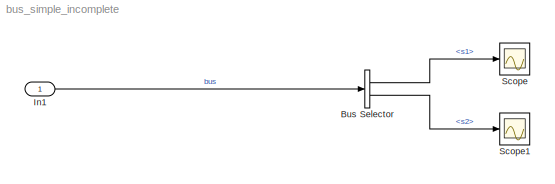
MODEL bus_simple_incomplete
KIND model
BLOCK [BusSelector] Bus Selector
  OutputSignals = s1,s2
  Ports = [1, 2]
  SID = 5
BLOCK [Inport] In1
  IconDisplay = Port number
  SID = 8
BLOCK [Scope] Scope
  DataFormat = StructureWithTime
  Floating = off
  NumInputPorts = 1
  Ports = [1]
  SID = 3
  SampleTime = 0
  ShowLegends = off
BLOCK [Scope] Scope1
  DataFormat = StructureWithTime
  Floating = off
  NumInputPorts = 1
  Ports = [1]
  SID = 6
  SampleTime = 0
  SaveName = ScopeData1
  ShowLegends = off
LINE Bus Selector:1 -> Scope:1
LINE Bus Selector:2 -> Scope1:1
LINE In1:1 -> Bus Selector:1
